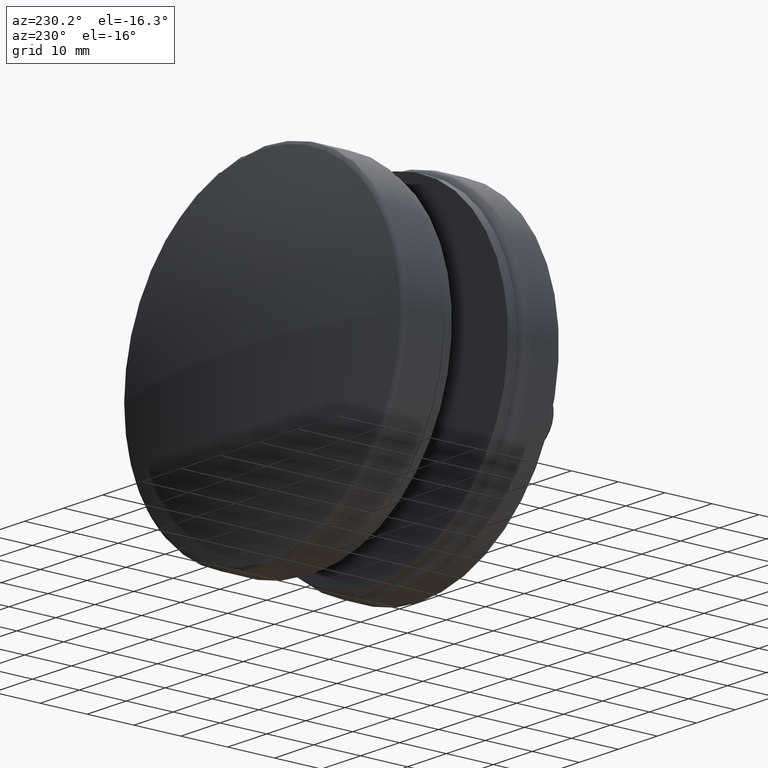
[diagram: clean part render]
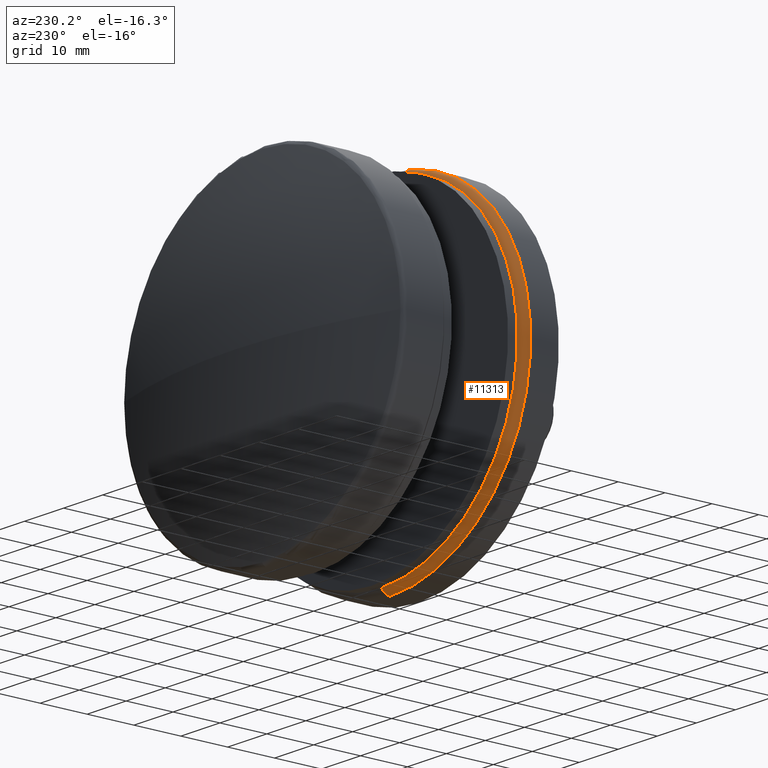
[diagram: same view with one face highlighted and labeled with its STEP entity id]
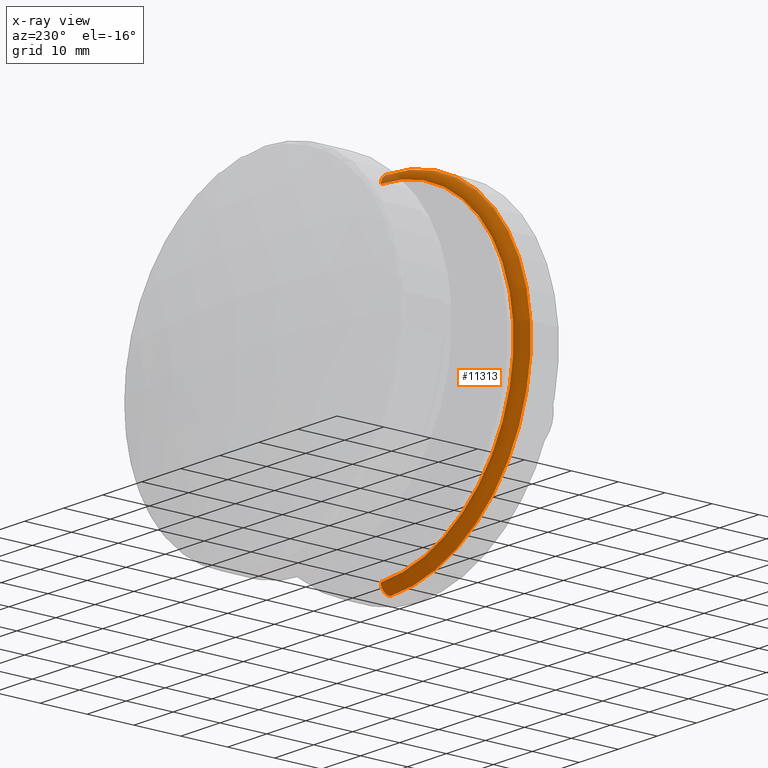
[diagram: x-ray of the same camera — body ghosted, the highlighted face saturated]
A machine part, auxiliary view. The second image highlights one B-rep face of the part: STEP entity #11313.
The next image is the same camera in x-ray: the body ghosted, the highlighted face saturated — about 1% of this face is hidden behind the body in this view.
In plain terms, the highlighted toroidal blend (fillet) surface has major radius 34 mm and minor (blend) radius 2 mm.
Its self-contained STEP definition (entity closure, byte-faithful):
#304 = CARTESIAN_POINT ( 'NONE',  ( 4.163799117100999770E-15, 6.000000000000000000, 33.99999999999999289 ) ) ;
#980 = ORIENTED_EDGE ( 'NONE', *, *, #14720, .T. ) ;
#997 = CIRCLE ( 'NONE', #10123, 2.000000000000001776 ) ;
#1530 = ORIENTED_EDGE ( 'NONE', *, *, #6046, .F. ) ;
#1588 = DIRECTION ( 'NONE',  ( 1.000000000000000000, 0.000000000000000000, -1.224646799147353207E-16 ) ) ;
#1672 = CARTESIAN_POINT ( 'NONE',  ( 0.000000000000000000, 8.000000000000000000, 0.000000000000000000 ) ) ;
#1952 = FACE_OUTER_BOUND ( 'NONE', #2112, .T. ) ;
#2068 = CARTESIAN_POINT ( 'NONE',  ( 4.408728476930470856E-15, 5.999999999999986677, 36.00000000000000000 ) ) ;
#2112 = EDGE_LOOP ( 'NONE', ( #13154, #980, #12291, #1530 ) ) ;
#2279 = CARTESIAN_POINT ( 'NONE',  ( 0.000000000000000000, 6.000000000000000000, -33.99999999999999289 ) ) ;
#2774 = DIRECTION ( 'NONE',  ( 0.000000000000000000, 0.000000000000000000, -1.000000000000000000 ) ) ;
#2810 = CARTESIAN_POINT ( 'NONE',  ( 0.000000000000000000, 5.999999999999986677, 0.000000000000000000 ) ) ;
#3859 = TOROIDAL_SURFACE ( 'NONE', #12303, 33.99999999999999289, 2.000000000000000888 ) ;
#4640 = CIRCLE ( 'NONE', #8056, 2.000000000000001776 ) ;
#4973 = CARTESIAN_POINT ( 'NONE',  ( 4.286263797015734130E-15, 8.000000000000000000, 33.99999999999997868 ) ) ;
#5366 = DIRECTION ( 'NONE',  ( -0.000000000000000000, -1.000000000000000000, -0.000000000000000000 ) ) ;
#5866 = VERTEX_POINT ( 'NONE', #7226 ) ;
#6046 = EDGE_CURVE ( 'NONE', #12025, #5866, #10097, .T. ) ;
#6334 = DIRECTION ( 'NONE',  ( -0.000000000000000000, -1.000000000000000000, -0.000000000000000000 ) ) ;
#7226 = CARTESIAN_POINT ( 'NONE',  ( 0.000000000000000000, 5.999999999999986677, -36.00000000000000000 ) ) ;
#7537 = CIRCLE ( 'NONE', #8453, 33.99999999999997868 ) ;
#7875 = EDGE_CURVE ( 'NONE', #9086, #12025, #4640, .T. ) ;
#8056 = AXIS2_PLACEMENT_3D ( 'NONE', #304, #1588, #10338 ) ;
#8453 = AXIS2_PLACEMENT_3D ( 'NONE', #1672, #5366, #10074 ) ;
#8904 = DIRECTION ( 'NONE',  ( -0.000000000000000000, -1.000000000000000000, -0.000000000000000000 ) ) ;
#9086 = VERTEX_POINT ( 'NONE', #4973 ) ;
#9562 = CARTESIAN_POINT ( 'NONE',  ( 0.000000000000000000, 8.000000000000000000, -33.99999999999997868 ) ) ;
#9679 = CARTESIAN_POINT ( 'NONE',  ( 0.000000000000000000, 6.000000000000000000, 0.000000000000000000 ) ) ;
#10074 = DIRECTION ( 'NONE',  ( 0.000000000000000000, 0.000000000000000000, -1.000000000000000000 ) ) ;
#10097 = CIRCLE ( 'NONE', #11863, 36.00000000000000000 ) ;
#10123 = AXIS2_PLACEMENT_3D ( 'NONE', #2279, #15559, #10671 ) ;
#10338 = DIRECTION ( 'NONE',  ( -1.224646799147353454E-16, 0.000000000000000000, -1.000000000000000000 ) ) ;
#10671 = DIRECTION ( 'NONE',  ( 0.000000000000000000, 0.000000000000000000, 1.000000000000000000 ) ) ;
#11313 = ADVANCED_FACE ( 'NONE', ( #1952 ), #3859, .T. ) ;
#11863 = AXIS2_PLACEMENT_3D ( 'NONE', #2810, #6334, #14778 ) ;
#12025 = VERTEX_POINT ( 'NONE', #2068 ) ;
#12204 = EDGE_CURVE ( 'NONE', #12223, #5866, #997, .T. ) ;
#12223 = VERTEX_POINT ( 'NONE', #9562 ) ;
#12291 = ORIENTED_EDGE ( 'NONE', *, *, #12204, .T. ) ;
#12303 = AXIS2_PLACEMENT_3D ( 'NONE', #9679, #8904, #2774 ) ;
#13154 = ORIENTED_EDGE ( 'NONE', *, *, #7875, .F. ) ;
#14720 = EDGE_CURVE ( 'NONE', #9086, #12223, #7537, .T. ) ;
#14778 = DIRECTION ( 'NONE',  ( 0.000000000000000000, 0.000000000000000000, -1.000000000000000000 ) ) ;
#15559 = DIRECTION ( 'NONE',  ( -1.000000000000000000, 0.000000000000000000, 0.000000000000000000 ) ) ;